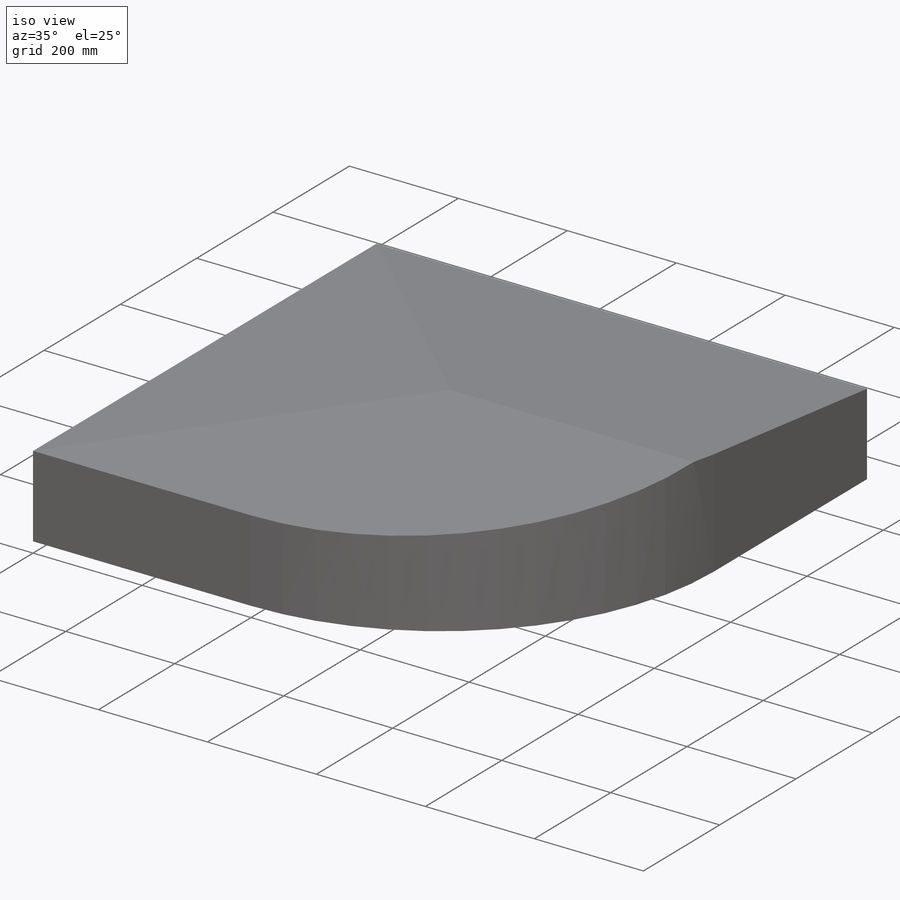
[diagram: iso view]
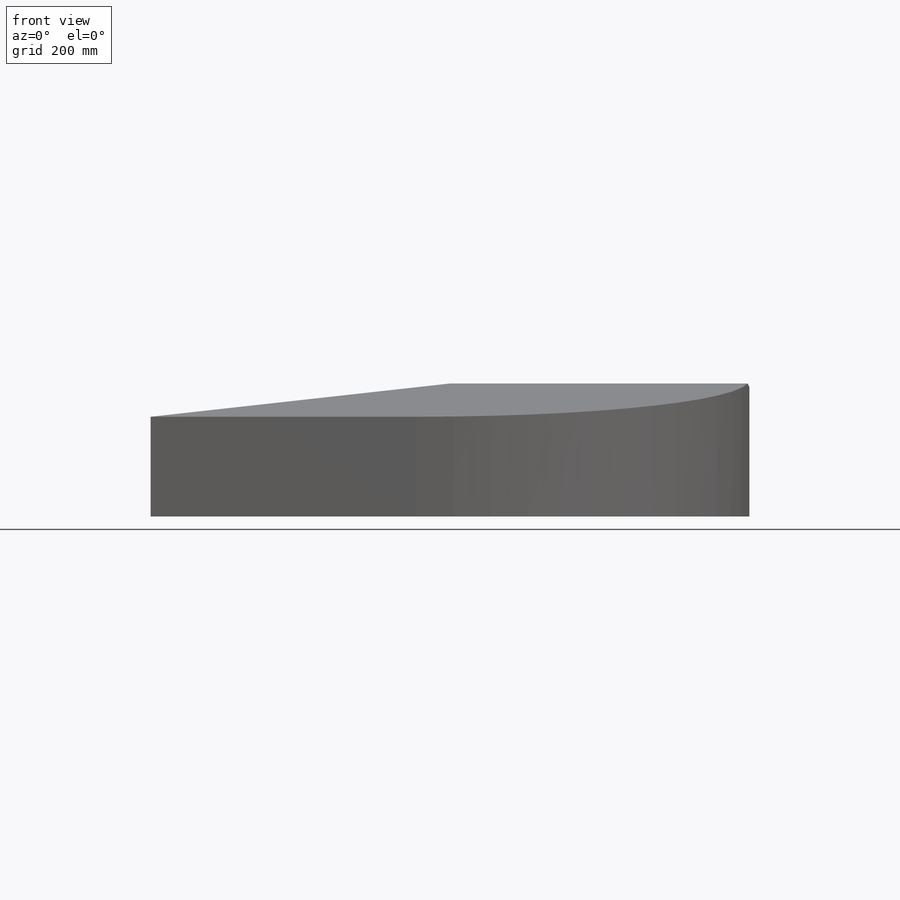
[diagram: front view]
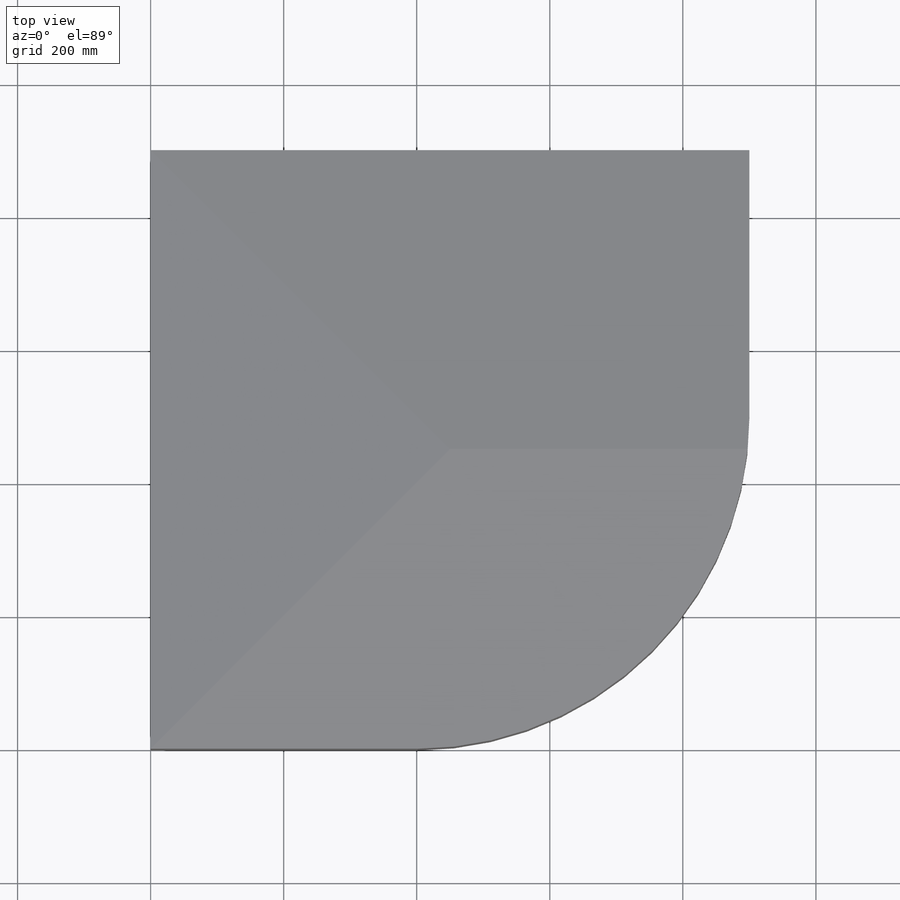
[diagram: top view]
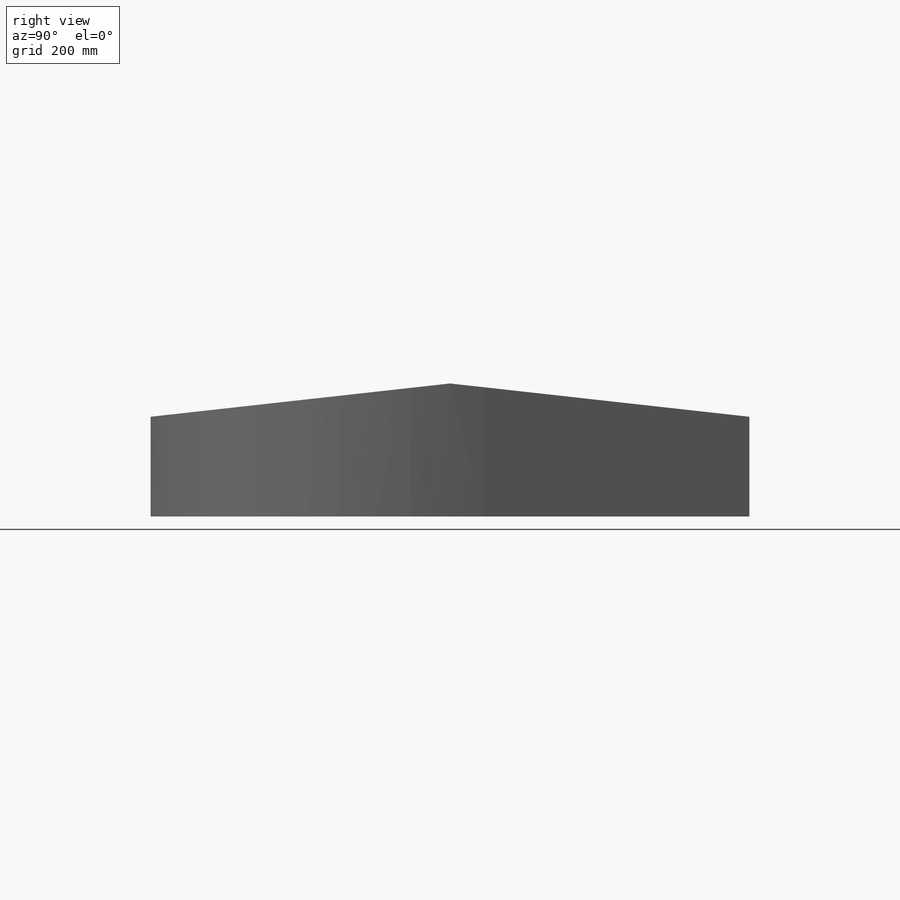
[diagram: right view]
SOLIDWORKS PART (.sldprt)
format: sldprt  version: not decoded by parser v0  size: 163,328 bytes
history: native  units: mm
features: sketch x4, plane x3, cut_extrude x3, material x1, extrude x1, fillet x1, shell x1 (+8 scaffold rows collapsed)
feature tree (22):
  scaffold x8  (default folders/planes/origin — collapsed)
  material  "Material <nicht festgelegt>"
  plane  "Ebene vorne"
  plane  "Ebene oben"
  plane  "Ebene rechts"
  sketch  "Skizze1"  dims[D1=900.0mm D2=~895.064441mm]
  extrude  "Hauptkörper"  Depth=200mm
  fillet  "Verrundung1"  Radius=500mm
  sketch  "Skizze7"  dims[D1=150.0mm]
  cut_extrude  "Schnitt-Linear austragen1"  [1 undecoded]
  sketch  "Skizze8"
  cut_extrude  "Schnitt-Linear austragen2"  [1 undecoded]
  sketch  "Skizze9"
  cut_extrude  "Schnitt-Linear austragen3"  [1 undecoded]
  shell  "Wandung2"  Thickness=70mm
decode coverage: 5 of 10 modeling features carry decoded parameters
note: ~ marks probable driven/reference dimensions
note: 3 parameter values undecoded
summary: no parameter record found for 3 features
note: suppression state not decoded; provenance and decode notes live in map.json
